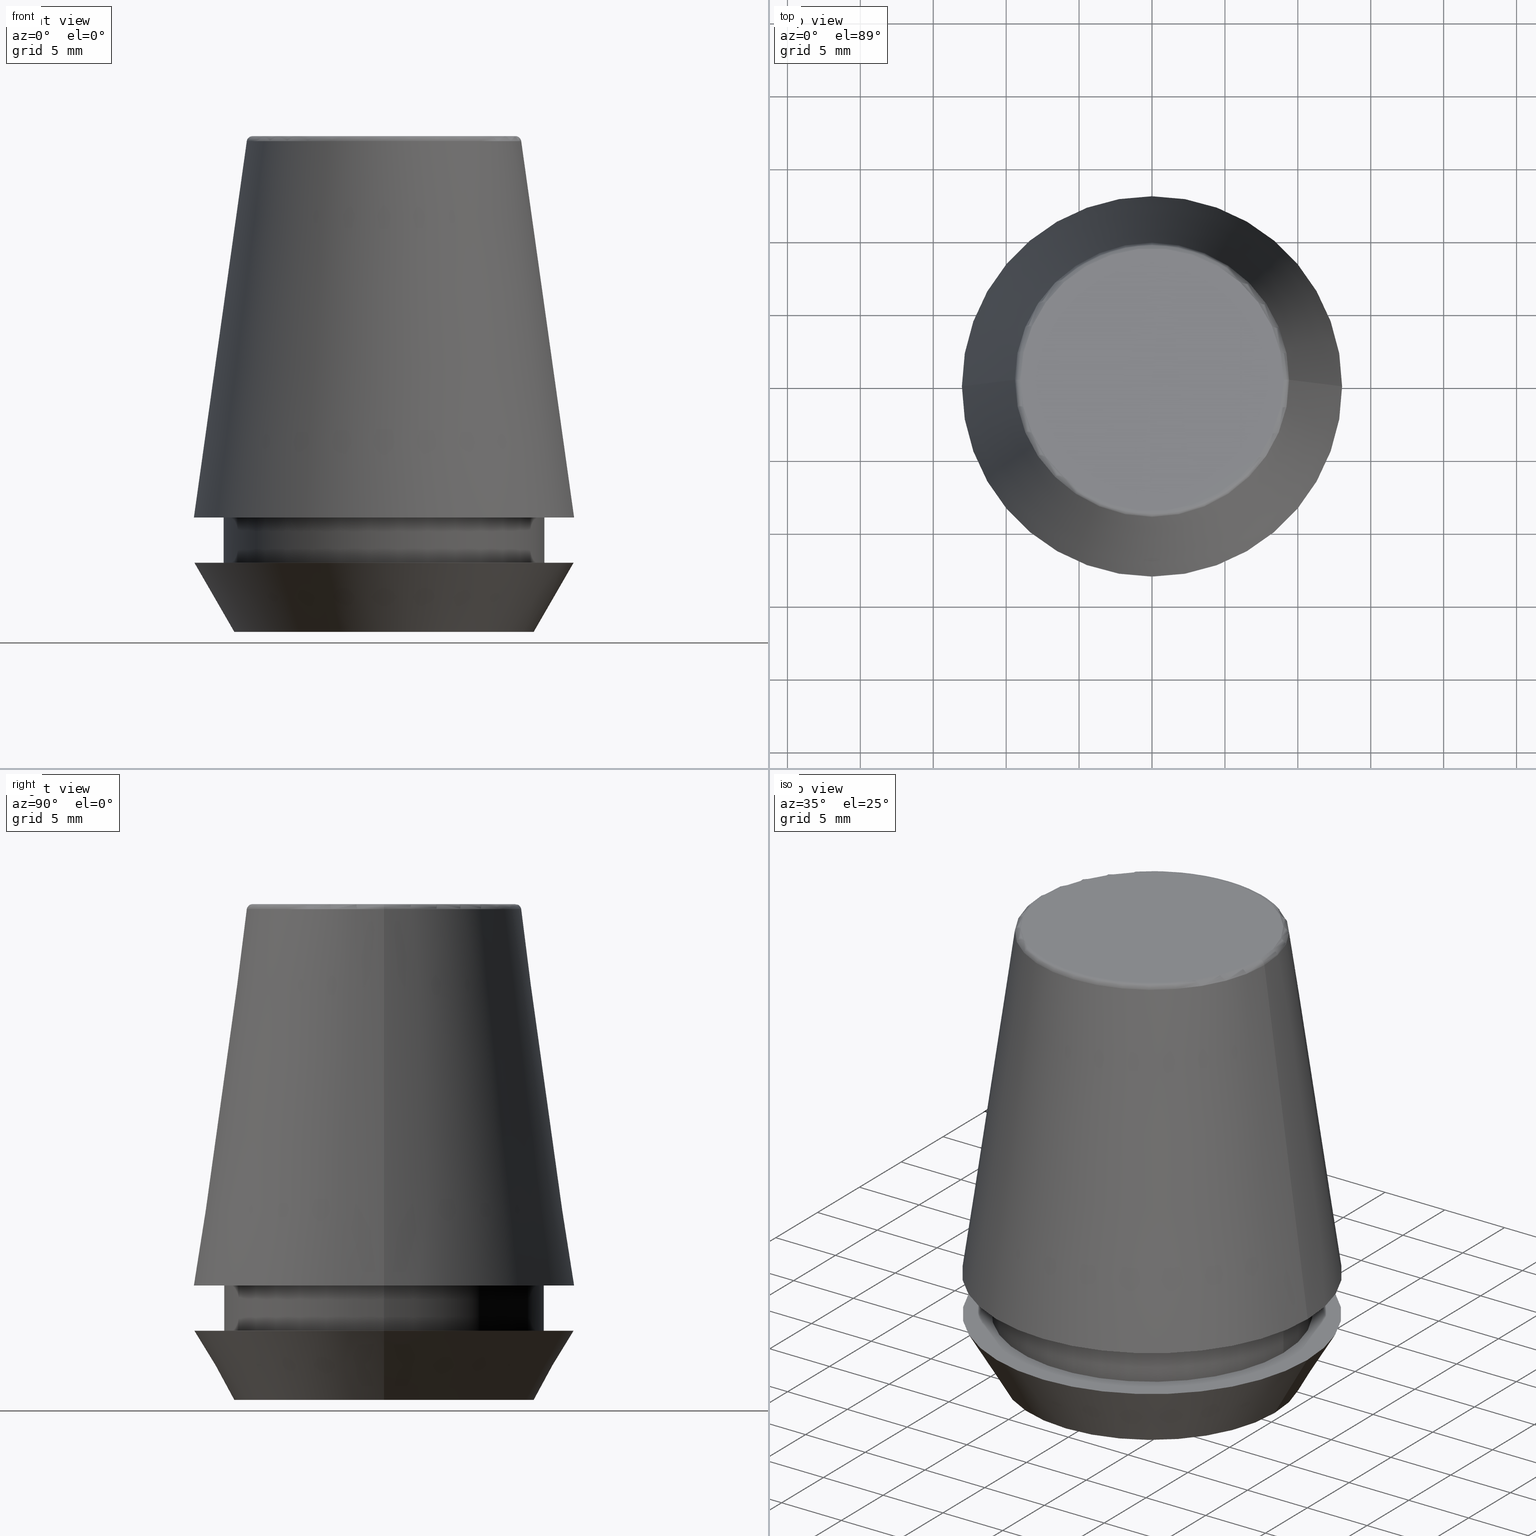
[diagram: canonical four-view strip — front | top / right | iso, engineering-drawing reading convention]
A machine part, canonical four-view strip (front | top / right | iso — engineering-drawing reading convention). The complete STEP part file that produces these views, byte-faithful:
ISO-10303-21;
HEADER;
FILE_DESCRIPTION (( 'STEP AP203' ),
    '1' );
FILE_NAME ('TAP COLLET ER 25G  12.0  X 9.0.STEP',
    '2019-04-09T10:17:04',
    ( '' ),
    ( '' ),
    'SwSTEP 2.0',
    'SolidWorks 2014',
    '' );
FILE_SCHEMA (( 'CONFIG_CONTROL_DESIGN' ));
ENDSEC;

DATA;
#1 = PRODUCT_DEFINITION ( 'UNKNOWN', '', #191, #283 ) ;
#2 = ADVANCED_FACE ( 'NONE', ( #251 ), #217, .T. ) ;
#3 = DIRECTION ( 'NONE',  ( -0.0000000000000000000, -0.0000000000000000000, 1.000000000000000000 ) ) ;
#4 = AXIS2_PLACEMENT_3D ( 'NONE', #328, #353, #347 ) ;
#5 = CARTESIAN_POINT ( 'NONE',  ( -11.00000000000000000, 1.347111479062088400E-015, 101.8074564848000400 ) ) ;
#6 = ADVANCED_FACE ( 'NONE', ( #219 ), #246, .T. ) ;
#7 = CIRCLE ( 'NONE', #166, 13.00000000000000000 ) ;
#8 = COORDINATED_UNIVERSAL_TIME_OFFSET ( 5, 30, .AHEAD. ) ;
#9 = AXIS2_PLACEMENT_3D ( 'NONE', #45, #172, #259 ) ;
#10 = EDGE_CURVE ( 'NONE', #253, #356, #359, .T. ) ;
#11 = DIRECTION ( 'NONE',  ( -0.4999999999999957800, 6.123233995736714300E-017, 0.8660254037844410400 ) ) ;
#12 = AXIS2_PLACEMENT_3D ( 'NONE', #60, #238, #49 ) ;
#13 = TOROIDAL_SURFACE ( 'NONE', #44, 9.012603057622234500, 0.4000000000000009700 ) ;
#14 = DIRECTION ( 'NONE',  ( -0.0000000000000000000, -0.0000000000000000000, 1.000000000000000000 ) ) ;
#15 = DIRECTION ( 'NONE',  ( 1.000000000000000000, 0.0000000000000000000, 0.0000000000000000000 ) ) ;
#16 = APPROVAL ( #98, 'UNSPECIFIED' ) ;
#17 = DIRECTION ( 'NONE',  ( 0.4999999999999957800, 0.0000000000000000000, 0.8660254037844410400 ) ) ;
#18 = CARTESIAN_POINT ( 'NONE',  ( 9.012603057622234500, 0.0000000000000000000, 33.60000000000000100 ) ) ;
#19 = DIRECTION ( 'NONE',  ( -0.0000000000000000000, -0.0000000000000000000, 1.000000000000000000 ) ) ;
#20 = FACE_OUTER_BOUND ( 'NONE', #216, .T. ) ;
#21 = CALENDAR_DATE ( 2019, 9, 4 ) ;
#22 = PRODUCT ( 'TAP COLLET ER 25G  12.0  X 9.0', 'TAP COLLET ER 25G  12.0  X 9.0', '', ( #153 ) ) ;
#23 = ORIENTED_EDGE ( 'NONE', *, *, #351, .T. ) ;
#24 = DIRECTION ( 'NONE',  ( -0.0000000000000000000, -0.0000000000000000000, 1.000000000000000000 ) ) ;
#25 = CARTESIAN_POINT ( 'NONE',  ( 11.00000000000000000, 0.0000000000000000000, 4.742050807568884500 ) ) ;
#26 =( GEOMETRIC_REPRESENTATION_CONTEXT ( 3 ) GLOBAL_UNCERTAINTY_ASSIGNED_CONTEXT ( ( #142 ) ) GLOBAL_UNIT_ASSIGNED_CONTEXT ( ( #100, #277, #63 ) ) REPRESENTATION_CONTEXT ( 'NONE', 'WORKASPACE' ) );
#27 = ADVANCED_FACE ( 'NONE', ( #364 ), #316, .T. ) ;
#28 = DIRECTION ( 'NONE',  ( 1.000000000000000000, 0.0000000000000000000, 0.0000000000000000000 ) ) ;
#29 = VECTOR ( 'NONE', #67, 1000.000000000000000 ) ;
#30 = APPROVAL_STATUS ( 'not_yet_approved' ) ;
#31 = APPLICATION_CONTEXT ( 'configuration controlled 3d designs of mechanical parts and assemblies' ) ;
#32 = AXIS2_PLACEMENT_3D ( 'NONE', #132, #258, #78 ) ;
#33 = DATE_AND_TIME ( #119, #192 ) ;
#34 = EDGE_LOOP ( 'NONE', ( #47, #205, #233, #250 ) ) ;
#35 = DIRECTION ( 'NONE',  ( -0.0000000000000000000, -0.0000000000000000000, 1.000000000000000000 ) ) ;
#36 = FACE_BOUND ( 'NONE', #68, .T. ) ;
#37 = CC_DESIGN_PERSON_AND_ORGANIZATION_ASSIGNMENT ( #247, #333, ( #22 ) ) ;
#38 = EDGE_LOOP ( 'NONE', ( #346, #220, #321, #198 ) ) ;
#39 = AXIS2_PLACEMENT_3D ( 'NONE', #360, #3, #94 ) ;
#40 = DIRECTION ( 'NONE',  ( 0.0000000000000000000, 0.0000000000000000000, -1.000000000000000000 ) ) ;
#41 = TOROIDAL_SURFACE ( 'NONE', #184, 9.012603057622234500, 0.4000000000000009700 ) ;
#42 = APPROVAL_PERSON_ORGANIZATION ( #144, #48, #125 ) ;
#43 = ORIENTED_EDGE ( 'NONE', *, *, #302, .T. ) ;
#44 = AXIS2_PLACEMENT_3D ( 'NONE', #331, #14, #242 ) ;
#45 = CARTESIAN_POINT ( 'NONE',  ( 0.0000000000000000000, 0.0000000000000000000, 7.842050807568890400 ) ) ;
#46 = AXIS2_PLACEMENT_3D ( 'NONE', #266, #80, #195 ) ;
#47 = ORIENTED_EDGE ( 'NONE', *, *, #160, .T. ) ;
#48 = APPROVAL ( #30, 'UNSPECIFIED' ) ;
#49 = DIRECTION ( 'NONE',  ( 1.000000000000000000, 0.0000000000000000000, 0.0000000000000000000 ) ) ;
#50 = CIRCLE ( 'NONE', #201, 13.03657776635556700 ) ;
#51 = VERTEX_POINT ( 'NONE', #173 ) ;
#52 = APPROVAL_DATE_TIME ( #365, #48 ) ;
#53 = VERTEX_POINT ( 'NONE', #291 ) ;
#54 = DIRECTION ( 'NONE',  ( 1.000000000000000000, 0.0000000000000000000, 0.0000000000000000000 ) ) ;
#55 = EDGE_CURVE ( 'NONE', #137, #53, #154, .T. ) ;
#56 = DIRECTION ( 'NONE',  ( -1.000000000000000000, 0.0000000000000000000, -0.0000000000000000000 ) ) ;
#57 = PLANE ( 'NONE',  #46 ) ;
#58 = DIRECTION ( 'NONE',  ( 1.000000000000000000, 0.0000000000000000000, 0.0000000000000000000 ) ) ;
#59 = AXIS2_PLACEMENT_3D ( 'NONE', #194, #136, #112 ) ;
#60 = CARTESIAN_POINT ( 'NONE',  ( 0.0000000000000000000, 0.0000000000000000000, 33.65566924038402900 ) ) ;
#61 = PERSON_AND_ORGANIZATION_ROLE ( 'creator' ) ;
#62 = AXIS2_PLACEMENT_3D ( 'NONE', #301, #122, #179 ) ;
#63 =( NAMED_UNIT ( * ) SI_UNIT ( $, .STERADIAN. ) SOLID_ANGLE_UNIT ( ) );
#64 = DATE_AND_TIME ( #372, #296 ) ;
#65 = ADVANCED_FACE ( 'NONE', ( #91 ), #41, .T. ) ;
#66 = VERTEX_POINT ( 'NONE', #230 ) ;
#67 = DIRECTION ( 'NONE',  ( -0.0000000000000000000, -0.0000000000000000000, 1.000000000000000000 ) ) ;
#68 = EDGE_LOOP ( 'NONE', ( #338, #139 ) ) ;
#69 = VECTOR ( 'NONE', #341, 1000.000000000000000 ) ;
#70 = EDGE_CURVE ( 'NONE', #66, #274, #267, .T. ) ;
#71 = CARTESIAN_POINT ( 'NONE',  ( -13.03657776635556700, 0.0000000000000000000, 7.842050807568876200 ) ) ;
#72 = ADVANCED_BREP_SHAPE_REPRESENTATION ( 'TAP COLLET ER 25G  12.0  X 9.0', ( #189, #141 ), #26 ) ;
#73 = CALENDAR_DATE ( 2019, 9, 4 ) ;
#74 = CC_DESIGN_APPROVAL ( #48, ( #191 ) ) ;
#75 = VERTEX_POINT ( 'NONE', #231 ) ;
#76 = EDGE_CURVE ( 'NONE', #193, #178, #279, .T. ) ;
#77 = CIRCLE ( 'NONE', #39, 10.26217568973925200 ) ;
#78 = DIRECTION ( 'NONE',  ( 1.000000000000000000, 0.0000000000000000000, 0.0000000000000000000 ) ) ;
#79 = VERTEX_POINT ( 'NONE', #140 ) ;
#80 = DIRECTION ( 'NONE',  ( 0.0000000000000000000, -0.0000000000000000000, 1.000000000000000000 ) ) ;
#81 = AXIS2_PLACEMENT_3D ( 'NONE', #143, #265, #232 ) ;
#82 = CARTESIAN_POINT ( 'NONE',  ( 13.03657776635556700, 1.596520323340289600E-015, 7.842050807568876200 ) ) ;
#83 = ORIENTED_EDGE ( 'NONE', *, *, #160, .F. ) ;
#84 = SHAPE_DEFINITION_REPRESENTATION ( #225, #72 ) ;
#85 = EDGE_CURVE ( 'NONE', #256, #137, #344, .T. ) ;
#86 = CARTESIAN_POINT ( 'NONE',  ( 11.00000000000000000, 0.0000000000000000000, 101.8074564848000400 ) ) ;
#87 = CARTESIAN_POINT ( 'NONE',  ( 13.03657776635556700, 1.596520323340289600E-015, 7.842050807568876200 ) ) ;
#88 = DIRECTION ( 'NONE',  ( -0.0000000000000000000, -0.0000000000000000000, 1.000000000000000000 ) ) ;
#89 = PERSON_AND_ORGANIZATION ( #204, #165 ) ;
#90 = ADVANCED_FACE ( 'NONE', ( #118 ), #168, .T. ) ;
#91 = FACE_OUTER_BOUND ( 'NONE', #236, .T. ) ;
#92 = AXIS2_PLACEMENT_3D ( 'NONE', #273, #244, #186 ) ;
#93 = DIRECTION ( 'NONE',  ( -0.0000000000000000000, -0.0000000000000000000, 1.000000000000000000 ) ) ;
#94 = DIRECTION ( 'NONE',  ( 1.000000000000000000, 0.0000000000000000000, 0.0000000000000000000 ) ) ;
#95 = EDGE_CURVE ( 'NONE', #178, #253, #374, .T. ) ;
#96 = CARTESIAN_POINT ( 'NONE',  ( -11.00000000000000000, 1.347111479062088400E-015, 4.742050807568884500 ) ) ;
#97 = ADVANCED_FACE ( 'NONE', ( #20 ), #200, .F. ) ;
#98 = APPROVAL_STATUS ( 'not_yet_approved' ) ;
#99 = CC_DESIGN_PERSON_AND_ORGANIZATION_ASSIGNMENT ( #355, #209, ( #191 ) ) ;
#100 =( LENGTH_UNIT ( ) NAMED_UNIT ( * ) SI_UNIT ( .MILLI., .METRE. ) );
#101 = EDGE_CURVE ( 'NONE', #53, #137, #50, .T. ) ;
#102 = APPROVAL_ROLE ( '' ) ;
#103 = VECTOR ( 'NONE', #88, 1000.000000000000000 ) ;
#104 = COORDINATED_UNIVERSAL_TIME_OFFSET ( 5, 30, .AHEAD. ) ;
#105 = DIRECTION ( 'NONE',  ( -0.0000000000000000000, -0.0000000000000000000, 1.000000000000000000 ) ) ;
#106 = CARTESIAN_POINT ( 'NONE',  ( 0.0000000000000000000, 0.0000000000000000000, 33.65566924038402900 ) ) ;
#107 = AXIS2_PLACEMENT_3D ( 'NONE', #348, #114, #293 ) ;
#108 = DIRECTION ( 'NONE',  ( 0.0000000000000000000, -1.000000000000000000, 0.0000000000000000000 ) ) ;
#109 = ORIENTED_EDGE ( 'NONE', *, *, #378, .F. ) ;
#110 = LOCAL_TIME ( 15, 47, 4.000000000000000000, #8 ) ;
#111 = DIRECTION ( 'NONE',  ( 1.000000000000000000, 0.0000000000000000000, 0.0000000000000000000 ) ) ;
#112 = DIRECTION ( 'NONE',  ( 1.000000000000000000, 0.0000000000000000000, 0.0000000000000000000 ) ) ;
#113 = CARTESIAN_POINT ( 'NONE',  ( 0.0000000000000000000, 0.0000000000000000000, 33.60000000000000100 ) ) ;
#114 = DIRECTION ( 'NONE',  ( -0.0000000000000000000, -0.0000000000000000000, 1.000000000000000000 ) ) ;
#115 = EDGE_CURVE ( 'NONE', #274, #120, #329, .T. ) ;
#116 = DIRECTION ( 'NONE',  ( -1.000000000000000000, 0.0000000000000000000, 0.0000000000000000000 ) ) ;
#117 = CC_DESIGN_PERSON_AND_ORGANIZATION_ASSIGNMENT ( #281, #152, ( #191 ) ) ;
#118 = FACE_OUTER_BOUND ( 'NONE', #376, .T. ) ;
#119 = CALENDAR_DATE ( 2019, 9, 4 ) ;
#120 = VERTEX_POINT ( 'NONE', #357 ) ;
#121 = EDGE_CURVE ( 'NONE', #178, #193, #255, .T. ) ;
#122 = DIRECTION ( 'NONE',  ( -0.0000000000000000000, -0.0000000000000000000, 1.000000000000000000 ) ) ;
#123 = DIRECTION ( 'NONE',  ( 1.000000000000000000, 0.0000000000000000000, 0.0000000000000000000 ) ) ;
#124 = FACE_OUTER_BOUND ( 'NONE', #218, .T. ) ;
#125 = APPROVAL_ROLE ( '' ) ;
#126 = APPLICATION_CONTEXT ( 'configuration controlled 3d designs of mechanical parts and assemblies' ) ;
#127 = AXIS2_PLACEMENT_3D ( 'NONE', #318, #167, #373 ) ;
#128 = COORDINATED_UNIVERSAL_TIME_OFFSET ( 5, 30, .AHEAD. ) ;
#129 = CARTESIAN_POINT ( 'NONE',  ( 0.0000000000000000000, 0.0000000000000000000, 7.842050807568876200 ) ) ;
#130 = EDGE_LOOP ( 'NONE', ( #208, #23, #354, #381 ) ) ;
#131 = DIRECTION ( 'NONE',  ( 1.000000000000000000, 0.0000000000000000000, 0.0000000000000000000 ) ) ;
#132 = CARTESIAN_POINT ( 'NONE',  ( 0.0000000000000000000, 0.0000000000000000000, 101.8074564848000400 ) ) ;
#133 = CC_DESIGN_APPROVAL ( #16, ( #1 ) ) ;
#134 = PERSON_AND_ORGANIZATION ( #204, #165 ) ;
#135 = EDGE_CURVE ( 'NONE', #79, #256, #239, .T. ) ;
#136 = DIRECTION ( 'NONE',  ( -0.0000000000000000000, -0.0000000000000000000, 1.000000000000000000 ) ) ;
#137 = VERTEX_POINT ( 'NONE', #87 ) ;
#138 = DIRECTION ( 'NONE',  ( 1.000000000000000000, 0.0000000000000000000, 0.0000000000000000000 ) ) ;
#139 = ORIENTED_EDGE ( 'NONE', *, *, #76, .F. ) ;
#140 = CARTESIAN_POINT ( 'NONE',  ( -9.408710285118862900, 0.0000000000000000000, 33.65566924038402900 ) ) ;
#141 = AXIS2_PLACEMENT_3D ( 'NONE', #335, #213, #183 ) ;
#142 = UNCERTAINTY_MEASURE_WITH_UNIT (LENGTH_MEASURE( 1.000000000000000100E-005 ), #100, 'distance_accuracy_value', 'NONE');
#143 = CARTESIAN_POINT ( 'NONE',  ( 0.0000000000000000000, 0.0000000000000000000, 4.742050807568884500 ) ) ;
#144 = PERSON_AND_ORGANIZATION ( #204, #165 ) ;
#145 = ORIENTED_EDGE ( 'NONE', *, *, #294, .F. ) ;
#146 = EDGE_LOOP ( 'NONE', ( #83, #382 ) ) ;
#147 = CARTESIAN_POINT ( 'NONE',  ( 0.0000000000000000000, 0.0000000000000000000, 34.00000000000000000 ) ) ;
#148 = CARTESIAN_POINT ( 'NONE',  ( -11.00000000000000000, 1.347111479062088400E-015, 7.842050807568890400 ) ) ;
#149 = CIRCLE ( 'NONE', #222, 0.3999999999999975800 ) ;
#150 = ORIENTED_EDGE ( 'NONE', *, *, #115, .T. ) ;
#151 = CONICAL_SURFACE ( 'NONE', #327, 10.26217568973925200, 0.5235987755982940400 ) ;
#152 = PERSON_AND_ORGANIZATION_ROLE ( 'design_supplier' ) ;
#153 = MECHANICAL_CONTEXT ( 'NONE', #31, 'mechanical' ) ;
#154 = CIRCLE ( 'NONE', #107, 13.03657776635556700 ) ;
#155 = DATE_AND_TIME ( #73, #380 ) ;
#156 = ORIENTED_EDGE ( 'NONE', *, *, #85, .T. ) ;
#157 = CC_DESIGN_PERSON_AND_ORGANIZATION_ASSIGNMENT ( #134, #61, ( #1 ) ) ;
#158 = DIRECTION ( 'NONE',  ( -1.000000000000000000, 1.224646799147353200E-016, 0.0000000000000000000 ) ) ;
#159 = DIRECTION ( 'NONE',  ( 0.0000000000000000000, 0.0000000000000000000, -1.000000000000000000 ) ) ;
#160 = EDGE_CURVE ( 'NONE', #66, #268, #77, .T. ) ;
#161 = CIRCLE ( 'NONE', #92, 10.26217568973925200 ) ;
#162 = ORIENTED_EDGE ( 'NONE', *, *, #10, .T. ) ;
#163 = PLANE ( 'NONE',  #4 ) ;
#164 = VECTOR ( 'NONE', #17, 1000.000000000000200 ) ;
#165 = ORGANIZATION ( 'UNSPECIFIED', 'UNSPECIFIED', '' ) ;
#166 = AXIS2_PLACEMENT_3D ( 'NONE', #352, #105, #290 ) ;
#167 = DIRECTION ( 'NONE',  ( -0.0000000000000000000, -0.0000000000000000000, 1.000000000000000000 ) ) ;
#168 = CONICAL_SURFACE ( 'NONE', #370, 13.03657776635556700, 0.1396263401595396500 ) ;
#169 = CARTESIAN_POINT ( 'NONE',  ( 11.00000000000000000, 0.0000000000000000000, 7.842050807568890400 ) ) ;
#170 = EDGE_LOOP ( 'NONE', ( #214, #226, #263, #308 ) ) ;
#171 = LINE ( 'NONE', #243, #262 ) ;
#172 = DIRECTION ( 'NONE',  ( -0.0000000000000000000, -0.0000000000000000000, 1.000000000000000000 ) ) ;
#173 = CARTESIAN_POINT ( 'NONE',  ( -9.012603057622234500, 1.127980121063915600E-015, 34.00000000000000000 ) ) ;
#174 = CC_DESIGN_DATE_AND_TIME_ASSIGNMENT ( #64, #245, ( #1 ) ) ;
#175 = CARTESIAN_POINT ( 'NONE',  ( 0.0000000000000000000, 0.0000000000000000000, 4.742050807568884500 ) ) ;
#176 = EDGE_CURVE ( 'NONE', #120, #274, #7, .T. ) ;
#177 = APPROVAL_PERSON_ORGANIZATION ( #257, #278, #102 ) ;
#178 = VERTEX_POINT ( 'NONE', #25 ) ;
#179 = DIRECTION ( 'NONE',  ( 1.000000000000000000, 0.0000000000000000000, 0.0000000000000000000 ) ) ;
#180 = PLANE ( 'NONE',  #299 ) ;
#181 = CONICAL_SURFACE ( 'NONE', #284, 13.03657776635556700, 0.1396263401595396500 ) ;
#182 = SECURITY_CLASSIFICATION_LEVEL ( 'unclassified' ) ;
#183 = DIRECTION ( 'NONE',  ( 1.000000000000000000, 0.0000000000000000000, 0.0000000000000000000 ) ) ;
#184 = AXIS2_PLACEMENT_3D ( 'NONE', #113, #377, #15 ) ;
#185 = CARTESIAN_POINT ( 'NONE',  ( -9.012603057622234500, 1.103725548650271700E-015, 33.60000000000000100 ) ) ;
#186 = DIRECTION ( 'NONE',  ( 1.000000000000000000, 0.0000000000000000000, 0.0000000000000000000 ) ) ;
#187 = VECTOR ( 'NONE', #323, 1000.000000000000000 ) ;
#188 = ORIENTED_EDGE ( 'NONE', *, *, #101, .F. ) ;
#189 = MANIFOLD_SOLID_BREP ( 'Revolve1', #223 ) ;
#190 = EDGE_LOOP ( 'NONE', ( #109, #292, #314, #215 ) ) ;
#191 = PRODUCT_DEFINITION_FORMATION_WITH_SPECIFIED_SOURCE ( 'ANY', '', #22, .NOT_KNOWN. ) ;
#192 = LOCAL_TIME ( 15, 47, 4.000000000000000000, #104 ) ;
#193 = VERTEX_POINT ( 'NONE', #96 ) ;
#194 = CARTESIAN_POINT ( 'NONE',  ( 0.0000000000000000000, 0.0000000000000000000, 0.0000000000000000000 ) ) ;
#195 = DIRECTION ( 'NONE',  ( 1.000000000000000000, 0.0000000000000000000, 0.0000000000000000000 ) ) ;
#196 = ORIENTED_EDGE ( 'NONE', *, *, #55, .F. ) ;
#197 = FACE_OUTER_BOUND ( 'NONE', #202, .T. ) ;
#198 = ORIENTED_EDGE ( 'NONE', *, *, #95, .F. ) ;
#199 = PERSON_AND_ORGANIZATION_ROLE ( 'classification_officer' ) ;
#200 = PLANE ( 'NONE',  #287 ) ;
#201 = AXIS2_PLACEMENT_3D ( 'NONE', #206, #24, #131 ) ;
#202 = EDGE_LOOP ( 'NONE', ( #150, #366 ) ) ;
#203 = LOCAL_TIME ( 15, 47, 4.000000000000000000, #128 ) ;
#204 = PERSON ( 'UNSPECIFIED', 'UNSPECIFIED', 'UNSPECIFIED', ('UNSPECIFIED'), ('UNSPECIFIED'), ('UNSPECIFIED') ) ;
#205 = ORIENTED_EDGE ( 'NONE', *, *, #275, .T. ) ;
#206 = CARTESIAN_POINT ( 'NONE',  ( 0.0000000000000000000, 0.0000000000000000000, 7.842050807568876200 ) ) ;
#207 = ORIENTED_EDGE ( 'NONE', *, *, #322, .T. ) ;
#208 = ORIENTED_EDGE ( 'NONE', *, *, #275, .F. ) ;
#209 = PERSON_AND_ORGANIZATION_ROLE ( 'creator' ) ;
#210 = EDGE_LOOP ( 'NONE', ( #162, #319 ) ) ;
#211 = COORDINATED_UNIVERSAL_TIME_OFFSET ( 5, 30, .AHEAD. ) ;
#212 = SECURITY_CLASSIFICATION ( '', '', #182 ) ;
#213 = DIRECTION ( 'NONE',  ( 0.0000000000000000000, 0.0000000000000000000, 1.000000000000000000 ) ) ;
#214 = ORIENTED_EDGE ( 'NONE', *, *, #85, .F. ) ;
#215 = ORIENTED_EDGE ( 'NONE', *, *, #315, .F. ) ;
#216 = EDGE_LOOP ( 'NONE', ( #43, #207 ) ) ;
#217 = CYLINDRICAL_SURFACE ( 'NONE', #32, 11.00000000000000000 ) ;
#218 = EDGE_LOOP ( 'NONE', ( #188, #196 ) ) ;
#219 = FACE_OUTER_BOUND ( 'NONE', #190, .T. ) ;
#220 = ORIENTED_EDGE ( 'NONE', *, *, #378, .T. ) ;
#221 = APPROVAL_PERSON_ORGANIZATION ( #325, #16, #276 ) ;
#222 = AXIS2_PLACEMENT_3D ( 'NONE', #18, #108, #40 ) ;
#223 = CLOSED_SHELL ( 'NONE', ( #324, #90, #2, #272, #307, #27, #362, #6, #334, #368, #65, #97 ) ) ;
#224 = CARTESIAN_POINT ( 'NONE',  ( 0.0000000000000000000, 0.0000000000000000000, 0.0000000000000000000 ) ) ;
#225 = PRODUCT_DEFINITION_SHAPE ( 'NONE', 'NONE',  #1 ) ;
#226 = ORIENTED_EDGE ( 'NONE', *, *, #135, .F. ) ;
#227 = CIRCLE ( 'NONE', #62, 11.00000000000000000 ) ;
#228 = ORIENTED_EDGE ( 'NONE', *, *, #135, .T. ) ;
#229 = CARTESIAN_POINT ( 'NONE',  ( 10.26217568973925200, 0.0000000000000000000, 0.0000000000000000000 ) ) ;
#230 = CARTESIAN_POINT ( 'NONE',  ( 10.26217568973925200, 0.0000000000000000000, 0.0000000000000000000 ) ) ;
#231 = CARTESIAN_POINT ( 'NONE',  ( 9.012603057622234500, 0.0000000000000000000, 34.00000000000000000 ) ) ;
#232 = DIRECTION ( 'NONE',  ( 1.000000000000000000, 0.0000000000000000000, 0.0000000000000000000 ) ) ;
#233 = ORIENTED_EDGE ( 'NONE', *, *, #115, .F. ) ;
#234 = APPROVAL_DATE_TIME ( #155, #16 ) ;
#235 = EDGE_LOOP ( 'NONE', ( #386, #280, #282, #295 ) ) ;
#236 = EDGE_LOOP ( 'NONE', ( #312, #228, #286, #303 ) ) ;
#237 = CC_DESIGN_PERSON_AND_ORGANIZATION_ASSIGNMENT ( #89, #199, ( #212 ) ) ;
#238 = DIRECTION ( 'NONE',  ( -0.0000000000000000000, -0.0000000000000000000, 1.000000000000000000 ) ) ;
#239 = CIRCLE ( 'NONE', #12, 9.408710285118862900 ) ;
#240 = FACE_BOUND ( 'NONE', #210, .T. ) ;
#241 = CARTESIAN_POINT ( 'NONE',  ( -10.26217568973925200, 1.424397449982127500E-015, 0.0000000000000000000 ) ) ;
#242 = DIRECTION ( 'NONE',  ( 1.000000000000000000, 0.0000000000000000000, 0.0000000000000000000 ) ) ;
#243 = CARTESIAN_POINT ( 'NONE',  ( -10.26217568973925200, 1.256754061072695800E-015, 0.0000000000000000000 ) ) ;
#244 = DIRECTION ( 'NONE',  ( -0.0000000000000000000, -0.0000000000000000000, 1.000000000000000000 ) ) ;
#245 = DATE_TIME_ROLE ( 'creation_date' ) ;
#246 = CYLINDRICAL_SURFACE ( 'NONE', #127, 11.00000000000000000 ) ;
#247 = PERSON_AND_ORGANIZATION ( #204, #165 ) ;
#248 = AXIS2_PLACEMENT_3D ( 'NONE', #300, #93, #123 ) ;
#249 = FACE_OUTER_BOUND ( 'NONE', #146, .T. ) ;
#250 = ORIENTED_EDGE ( 'NONE', *, *, #70, .F. ) ;
#251 = FACE_OUTER_BOUND ( 'NONE', #38, .T. ) ;
#252 = CARTESIAN_POINT ( 'NONE',  ( 13.00000000000000000, 0.0000000000000000000, 4.742050807568884500 ) ) ;
#253 = VERTEX_POINT ( 'NONE', #169 ) ;
#254 = CC_DESIGN_DATE_AND_TIME_ASSIGNMENT ( #339, #310, ( #212 ) ) ;
#255 = CIRCLE ( 'NONE', #343, 11.00000000000000000 ) ;
#256 = VERTEX_POINT ( 'NONE', #379 ) ;
#257 = PERSON_AND_ORGANIZATION ( #204, #165 ) ;
#258 = DIRECTION ( 'NONE',  ( -0.0000000000000000000, -0.0000000000000000000, 1.000000000000000000 ) ) ;
#259 = DIRECTION ( 'NONE',  ( 1.000000000000000000, 0.0000000000000000000, 0.0000000000000000000 ) ) ;
#260 = EDGE_CURVE ( 'NONE', #256, #75, #149, .T. ) ;
#261 = DIRECTION ( 'NONE',  ( -1.000000000000000000, 0.0000000000000000000, 0.0000000000000000000 ) ) ;
#262 = VECTOR ( 'NONE', #11, 1000.000000000000200 ) ;
#263 = ORIENTED_EDGE ( 'NONE', *, *, #294, .T. ) ;
#264 = CIRCLE ( 'NONE', #358, 0.4000000000000010200 ) ;
#265 = DIRECTION ( 'NONE',  ( -0.0000000000000000000, -0.0000000000000000000, 1.000000000000000000 ) ) ;
#266 = CARTESIAN_POINT ( 'NONE',  ( 0.0000000000000000000, 13.03657776635556700, 7.842050807568883300 ) ) ;
#267 = LINE ( 'NONE', #229, #164 ) ;
#268 = VERTEX_POINT ( 'NONE', #241 ) ;
#269 = CARTESIAN_POINT ( 'NONE',  ( 0.0000000000000000000, 9.012603057622234500, 34.00000000000000000 ) ) ;
#270 = DIRECTION ( 'NONE',  ( -0.0000000000000000000, -0.0000000000000000000, 1.000000000000000000 ) ) ;
#271 = FACE_OUTER_BOUND ( 'NONE', #170, .T. ) ;
#272 = ADVANCED_FACE ( 'NONE', ( #313 ), #151, .T. ) ;
#273 = CARTESIAN_POINT ( 'NONE',  ( 0.0000000000000000000, 0.0000000000000000000, 0.0000000000000000000 ) ) ;
#274 = VERTEX_POINT ( 'NONE', #252 ) ;
#275 = EDGE_CURVE ( 'NONE', #268, #120, #171, .T. ) ;
#276 = APPROVAL_ROLE ( '' ) ;
#277 =( NAMED_UNIT ( * ) PLANE_ANGLE_UNIT ( ) SI_UNIT ( $, .RADIAN. ) );
#278 = APPROVAL ( #340, 'UNSPECIFIED' ) ;
#279 = CIRCLE ( 'NONE', #81, 11.00000000000000000 ) ;
#280 = ORIENTED_EDGE ( 'NONE', *, *, #369, .T. ) ;
#281 = PERSON_AND_ORGANIZATION ( #204, #165 ) ;
#282 = ORIENTED_EDGE ( 'NONE', *, *, #302, .F. ) ;
#283 = DESIGN_CONTEXT ( 'detailed design', #126, 'design' ) ;
#284 = AXIS2_PLACEMENT_3D ( 'NONE', #129, #332, #261 ) ;
#285 = EDGE_CURVE ( 'NONE', #256, #79, #342, .T. ) ;
#286 = ORIENTED_EDGE ( 'NONE', *, *, #260, .T. ) ;
#287 = AXIS2_PLACEMENT_3D ( 'NONE', #269, #385, #56 ) ;
#288 = CALENDAR_DATE ( 2019, 9, 4 ) ;
#289 = ORIENTED_EDGE ( 'NONE', *, *, #285, .F. ) ;
#290 = DIRECTION ( 'NONE',  ( 1.000000000000000000, 0.0000000000000000000, 0.0000000000000000000 ) ) ;
#291 = CARTESIAN_POINT ( 'NONE',  ( -13.03657776635556700, 0.0000000000000000000, 7.842050807568876200 ) ) ;
#292 = ORIENTED_EDGE ( 'NONE', *, *, #76, .T. ) ;
#293 = DIRECTION ( 'NONE',  ( 1.000000000000000000, 0.0000000000000000000, 0.0000000000000000000 ) ) ;
#294 = EDGE_CURVE ( 'NONE', #79, #53, #311, .T. ) ;
#295 = ORIENTED_EDGE ( 'NONE', *, *, #260, .F. ) ;
#296 = LOCAL_TIME ( 15, 47, 4.000000000000000000, #211 ) ;
#297 = CC_DESIGN_APPROVAL ( #278, ( #212 ) ) ;
#298 = DIRECTION ( 'NONE',  ( -0.0000000000000000000, -0.0000000000000000000, 1.000000000000000000 ) ) ;
#299 = AXIS2_PLACEMENT_3D ( 'NONE', #304, #159, #337 ) ;
#300 = CARTESIAN_POINT ( 'NONE',  ( 0.0000000000000000000, 0.0000000000000000000, 34.00000000000000000 ) ) ;
#301 = CARTESIAN_POINT ( 'NONE',  ( 0.0000000000000000000, 0.0000000000000000000, 7.842050807568890400 ) ) ;
#302 = EDGE_CURVE ( 'NONE', #75, #51, #387, .T. ) ;
#303 = ORIENTED_EDGE ( 'NONE', *, *, #322, .F. ) ;
#304 = CARTESIAN_POINT ( 'NONE',  ( 0.0000000000000000000, 13.00000000000000000, 4.742050807568884500 ) ) ;
#305 = APPLICATION_PROTOCOL_DEFINITION ( 'international standard', 'config_control_design', 1994, #126 ) ;
#306 = COORDINATED_UNIVERSAL_TIME_OFFSET ( 5, 30, .AHEAD. ) ;
#307 = ADVANCED_FACE ( 'NONE', ( #249 ), #163, .F. ) ;
#308 = ORIENTED_EDGE ( 'NONE', *, *, #101, .T. ) ;
#309 = AXIS2_PLACEMENT_3D ( 'NONE', #383, #19, #54 ) ;
#310 = DATE_TIME_ROLE ( 'classification_date' ) ;
#311 = LINE ( 'NONE', #71, #69 ) ;
#312 = ORIENTED_EDGE ( 'NONE', *, *, #369, .F. ) ;
#313 = FACE_OUTER_BOUND ( 'NONE', #34, .T. ) ;
#314 = ORIENTED_EDGE ( 'NONE', *, *, #95, .T. ) ;
#315 = EDGE_CURVE ( 'NONE', #356, #253, #227, .T. ) ;
#316 = CONICAL_SURFACE ( 'NONE', #59, 10.26217568973925200, 0.5235987755982940400 ) ;
#317 = CC_DESIGN_SECURITY_CLASSIFICATION ( #212, ( #191 ) ) ;
#318 = CARTESIAN_POINT ( 'NONE',  ( 0.0000000000000000000, 0.0000000000000000000, 101.8074564848000400 ) ) ;
#319 = ORIENTED_EDGE ( 'NONE', *, *, #315, .T. ) ;
#320 = CIRCLE ( 'NONE', #248, 9.012603057622234500 ) ;
#321 = ORIENTED_EDGE ( 'NONE', *, *, #10, .F. ) ;
#322 = EDGE_CURVE ( 'NONE', #51, #75, #320, .T. ) ;
#323 = DIRECTION ( 'NONE',  ( 0.1391731009600587800, 1.704378926181474000E-017, -0.9902680687415712500 ) ) ;
#324 = ADVANCED_FACE ( 'NONE', ( #330 ), #13, .T. ) ;
#325 = PERSON_AND_ORGANIZATION ( #204, #165 ) ;
#326 = CARTESIAN_POINT ( 'NONE',  ( 0.0000000000000000000, 0.0000000000000000000, 7.842050807568876200 ) ) ;
#327 = AXIS2_PLACEMENT_3D ( 'NONE', #224, #371, #111 ) ;
#328 = CARTESIAN_POINT ( 'NONE',  ( 0.0000000000000000000, 0.0000000000000000000, 0.0000000000000000000 ) ) ;
#329 = CIRCLE ( 'NONE', #309, 13.00000000000000000 ) ;
#330 = FACE_OUTER_BOUND ( 'NONE', #235, .T. ) ;
#331 = CARTESIAN_POINT ( 'NONE',  ( 0.0000000000000000000, 0.0000000000000000000, 33.60000000000000100 ) ) ;
#332 = DIRECTION ( 'NONE',  ( 0.0000000000000000000, 0.0000000000000000000, -1.000000000000000000 ) ) ;
#333 = PERSON_AND_ORGANIZATION_ROLE ( 'design_owner' ) ;
#334 = ADVANCED_FACE ( 'NONE', ( #124, #240 ), #57, .F. ) ;
#335 = CARTESIAN_POINT ( 'NONE',  ( 0.0000000000000000000, 0.0000000000000000000, 0.0000000000000000000 ) ) ;
#336 = PRODUCT_RELATED_PRODUCT_CATEGORY ( 'detail', '', ( #22 ) ) ;
#337 = DIRECTION ( 'NONE',  ( -1.000000000000000000, 0.0000000000000000000, -0.0000000000000000000 ) ) ;
#338 = ORIENTED_EDGE ( 'NONE', *, *, #121, .F. ) ;
#339 = DATE_AND_TIME ( #21, #110 ) ;
#340 = APPROVAL_STATUS ( 'not_yet_approved' ) ;
#341 = DIRECTION ( 'NONE',  ( -0.1391731009600587800, 0.0000000000000000000, -0.9902680687415712500 ) ) ;
#342 = CIRCLE ( 'NONE', #367, 9.408710285118862900 ) ;
#343 = AXIS2_PLACEMENT_3D ( 'NONE', #175, #298, #28 ) ;
#344 = LINE ( 'NONE', #82, #187 ) ;
#345 = APPROVAL_DATE_TIME ( #33, #278 ) ;
#346 = ORIENTED_EDGE ( 'NONE', *, *, #121, .T. ) ;
#347 = DIRECTION ( 'NONE',  ( 1.000000000000000000, 0.0000000000000000000, 0.0000000000000000000 ) ) ;
#348 = CARTESIAN_POINT ( 'NONE',  ( 0.0000000000000000000, 0.0000000000000000000, 7.842050807568876200 ) ) ;
#349 = LINE ( 'NONE', #5, #29 ) ;
#350 = DIRECTION ( 'NONE',  ( 0.0000000000000000000, 0.0000000000000000000, -1.000000000000000000 ) ) ;
#351 = EDGE_CURVE ( 'NONE', #268, #66, #161, .T. ) ;
#352 = CARTESIAN_POINT ( 'NONE',  ( 0.0000000000000000000, 0.0000000000000000000, 4.742050807568884500 ) ) ;
#353 = DIRECTION ( 'NONE',  ( 0.0000000000000000000, -0.0000000000000000000, 1.000000000000000000 ) ) ;
#354 = ORIENTED_EDGE ( 'NONE', *, *, #70, .T. ) ;
#355 = PERSON_AND_ORGANIZATION ( #204, #165 ) ;
#356 = VERTEX_POINT ( 'NONE', #148 ) ;
#357 = CARTESIAN_POINT ( 'NONE',  ( -13.00000000000000000, 1.592040838891559100E-015, 4.742050807568884500 ) ) ;
#358 = AXIS2_PLACEMENT_3D ( 'NONE', #185, #363, #158 ) ;
#359 = CIRCLE ( 'NONE', #9, 11.00000000000000000 ) ;
#360 = CARTESIAN_POINT ( 'NONE',  ( 0.0000000000000000000, 0.0000000000000000000, 0.0000000000000000000 ) ) ;
#361 = APPLICATION_PROTOCOL_DEFINITION ( 'international standard', 'config_control_design', 1994, #31 ) ;
#362 = ADVANCED_FACE ( 'NONE', ( #36, #197 ), #180, .F. ) ;
#363 = DIRECTION ( 'NONE',  ( 1.224646799147353200E-016, 1.000000000000000000, 0.0000000000000000000 ) ) ;
#364 = FACE_OUTER_BOUND ( 'NONE', #130, .T. ) ;
#365 = DATE_AND_TIME ( #288, #203 ) ;
#366 = ORIENTED_EDGE ( 'NONE', *, *, #176, .T. ) ;
#367 = AXIS2_PLACEMENT_3D ( 'NONE', #106, #35, #58 ) ;
#368 = ADVANCED_FACE ( 'NONE', ( #271 ), #181, .T. ) ;
#369 = EDGE_CURVE ( 'NONE', #79, #51, #264, .T. ) ;
#370 = AXIS2_PLACEMENT_3D ( 'NONE', #326, #350, #116 ) ;
#371 = DIRECTION ( 'NONE',  ( -0.0000000000000000000, -0.0000000000000000000, 1.000000000000000000 ) ) ;
#372 = CALENDAR_DATE ( 2019, 9, 4 ) ;
#373 = DIRECTION ( 'NONE',  ( 1.000000000000000000, 0.0000000000000000000, 0.0000000000000000000 ) ) ;
#374 = LINE ( 'NONE', #86, #103 ) ;
#375 = ORIENTED_EDGE ( 'NONE', *, *, #55, .T. ) ;
#376 = EDGE_LOOP ( 'NONE', ( #289, #156, #375, #145 ) ) ;
#377 = DIRECTION ( 'NONE',  ( -0.0000000000000000000, -0.0000000000000000000, 1.000000000000000000 ) ) ;
#378 = EDGE_CURVE ( 'NONE', #193, #356, #349, .T. ) ;
#379 = CARTESIAN_POINT ( 'NONE',  ( 9.408710285118862900, 1.374377508408924700E-015, 33.65566924038402900 ) ) ;
#380 = LOCAL_TIME ( 15, 47, 4.000000000000000000, #306 ) ;
#381 = ORIENTED_EDGE ( 'NONE', *, *, #176, .F. ) ;
#382 = ORIENTED_EDGE ( 'NONE', *, *, #351, .F. ) ;
#383 = CARTESIAN_POINT ( 'NONE',  ( 0.0000000000000000000, 0.0000000000000000000, 4.742050807568884500 ) ) ;
#384 = AXIS2_PLACEMENT_3D ( 'NONE', #147, #270, #138 ) ;
#385 = DIRECTION ( 'NONE',  ( 0.0000000000000000000, 0.0000000000000000000, -1.000000000000000000 ) ) ;
#386 = ORIENTED_EDGE ( 'NONE', *, *, #285, .T. ) ;
#387 = CIRCLE ( 'NONE', #384, 9.012603057622234500 ) ;
ENDSEC;
END-ISO-10303-21;
